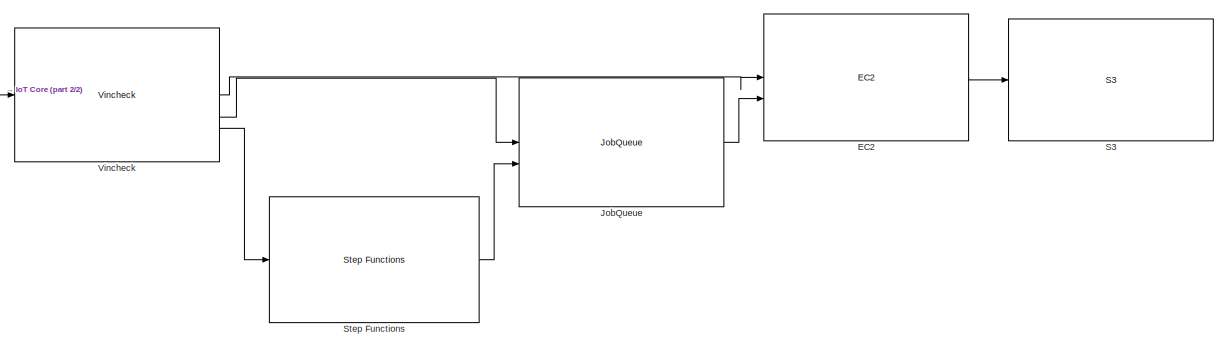
[diagram: root canvas - part 1/2, center side, full height]
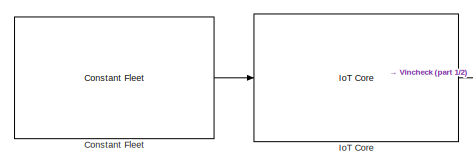
[diagram: root canvas - part 2/2, top left region]
MODEL slx_86e737e01add
KIND model
CONFIG AbsTol = auto
CONFIG EnableMultiTasking = off
CONFIG FixedStep = auto
CONFIG MaxStep = auto
CONFIG MinStep = auto
CONFIG RelTol = 1e-3
CONFIG SampleTimeConstraint = Unconstrained
CONFIG SolverName = VariableStepAuto
CONFIG StartTime = 0.0
CONFIG StopTime = 1800
BLOCK [Reference] Constant Fleet  REF=VACLib/Vehicle Components/Constant Fleet
  SourceBlock = VACLib/Vehicle Components/Constant Fleet
  SourceProductName = Volvo Architechture Components
BLOCK [Reference] EC2  REF=VACLib/AWS Components/EC2
  SourceBlock = VACLib/AWS Components/EC2
  SourceProductName = Volvo Architechture Components
BLOCK [Reference] IoT Core  REF=VACLib/AWS Components/IoT Core
  SourceBlock = VACLib/AWS Components/IoT Core
  SourceProductName = Volvo Architechture Components
BLOCK [Reference] JobQueue  REF=VACLib/AWS Components/JobQueue
  SourceBlock = VACLib/AWS Components/JobQueue
  SourceProductName = Volvo Architechture Components
BLOCK [Reference] S3  REF=VACLib/AWS Components/S3
  SourceBlock = VACLib/AWS Components/S3
  SourceProductName = Volvo Architechture Components
BLOCK [Reference] Step Functions  REF=VACLib/AWS Components/Step Functions
  SourceBlock = VACLib/AWS Components/Step Functions
  SourceProductName = Volvo Architechture Components
BLOCK [Reference] Vincheck  REF=VACLib/AWS Components/Vincheck
  SourceBlock = VACLib/AWS Components/Vincheck
  SourceProductName = Volvo Architechture Components
LINE Constant Fleet:1 -> IoT Core:1
LINE EC2:1 -> S3:1
LINE IoT Core:1 -> Vincheck:1
LINE JobQueue:1 -> EC2:2
LINE Step Functions:1 -> JobQueue:2
LINE Vincheck:1 -> EC2:1
LINE Vincheck:2 -> JobQueue:1
LINE Vincheck:3 -> Step Functions:1
